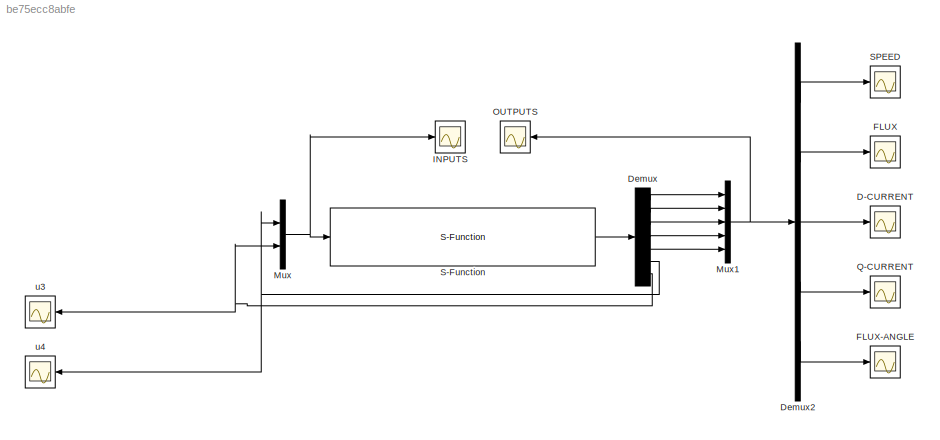
MODEL slx_be75ecc8abfe
KIND model
CONFIG AbsTol = auto
CONFIG FixedStep = auto
CONFIG MaxStep = auto
CONFIG MinStep = auto
CONFIG RelTol = 1e-3
CONFIG SampleTimeConstraint = Unconstrained
CONFIG Solver = ode45
CONFIG SolverMode = Auto
CONFIG SolverName = ode45
CONFIG StartTime = 0.0
CONFIG StopTime = 5
BLOCK [Scope]  FLUX-ANGLE
  DataFormat = StructureWithTime
  Floating = off
  NumInputPorts = 1
  Ports = [1]
  SampleTime = 0
  SaveName = ScopeData6
  TimeRange = 5
  YMax = 3.075e+06
  YMin = 2.675e+06
BLOCK [Scope]  Q-CURRENT
  DataFormat = StructureWithTime
  Floating = off
  NumInputPorts = 1
  Ports = [1]
  SampleTime = 0
  SaveName = ScopeData5
  YMax = 9465
  YMin = 9350
BLOCK [Scope] D-CURRENT
  DataFormat = StructureWithTime
  Floating = off
  NumInputPorts = 1
  Ports = [1]
  SampleTime = 0
  SaveName = ScopeData4
  YMax = 9000
  YMin = -6000
BLOCK [Demux] Demux
  DisplayOption = bar
  Outputs = 7
  Ports = [1, 7]
BLOCK [Demux] Demux2
  DisplayOption = bar
  Outputs = 5
  Ports = [1, 5]
BLOCK [Scope] FLUX
  DataFormat = StructureWithTime
  Floating = off
  NumInputPorts = 1
  Ports = [1]
  SampleTime = 0
  SaveName = ScopeData3
  YMax = 4.5
  YMin = -4.5
  ZoomMode = yonly
BLOCK [Scope] INPUTS
  DataFormat = StructureWithTime
  Floating = off
  NumInputPorts = 1
  Ports = [1]
  SampleTime = 0
  SaveName = ScopeData1
  YMax = 1.25e+09
  YMin = -1.5e+09
BLOCK [Mux] Mux
  DisplayOption = bar
  Inputs = 2
  Ports = [2, 1]
BLOCK [Mux] Mux1
  DisplayOption = bar
  Inputs = 5
  Ports = [5, 1]
BLOCK [Scope] OUTPUTS
  DataFormat = StructureWithTime
  Floating = off
  NumInputPorts = 1
  Ports = [1]
  SampleTime = 0
  SaveName = ScopeData11
  YMax = 200000
  YMin = -950000
BLOCK [S-Function] S-Function
  FunctionName = mycontroller
  Ports = [1, 1]
BLOCK [Scope] SPEED
  DataFormat = StructureWithTime
  Floating = off
  NumInputPorts = 1
  Ports = [1]
  SampleTime = 0
  SaveName = ScopeData2
  TimeRange = 10
  YMax = 11000
  YMin = -12000
BLOCK [Scope] u3
  DataFormat = StructureWithTime
  Floating = off
  NumInputPorts = 1
  Ports = [1]
  SampleTime = 0
  SaveName = ScopeData10
  YMax = 2.25e+12
  YMin = -2.25e+12
  ZoomMode = yonly
BLOCK [Scope] u4
  DataFormat = StructureWithTime
  Floating = off
  NumInputPorts = 1
  Ports = [1]
  SampleTime = 0
  SaveName = ScopeData9
  YMax = 120000
  YMin = 0
LINE Demux2:1 -> SPEED:1
LINE Demux2:2 -> FLUX:1
LINE Demux2:3 -> D-CURRENT:1
LINE Demux2:4 ->  Q-CURRENT:1
LINE Demux2:5 ->  FLUX-ANGLE:1
LINE Demux:1 -> Mux1:1
LINE Demux:2 -> Mux1:2
LINE Demux:3 -> Mux1:3
LINE Demux:4 -> Mux1:4
LINE Demux:5 -> Mux1:5
NET Demux:6 -> Mux:1, u4:1
NET Demux:7 -> Mux:2, u3:1
NET Mux1:1 -> Demux2:1, OUTPUTS:1
NET Mux:1 -> INPUTS:1, S-Function:1
LINE S-Function:1 -> Demux:1
note: NET lines group one-source signal fan-out (src -> all destinations, sorted); 1:1 wires keep LINE
